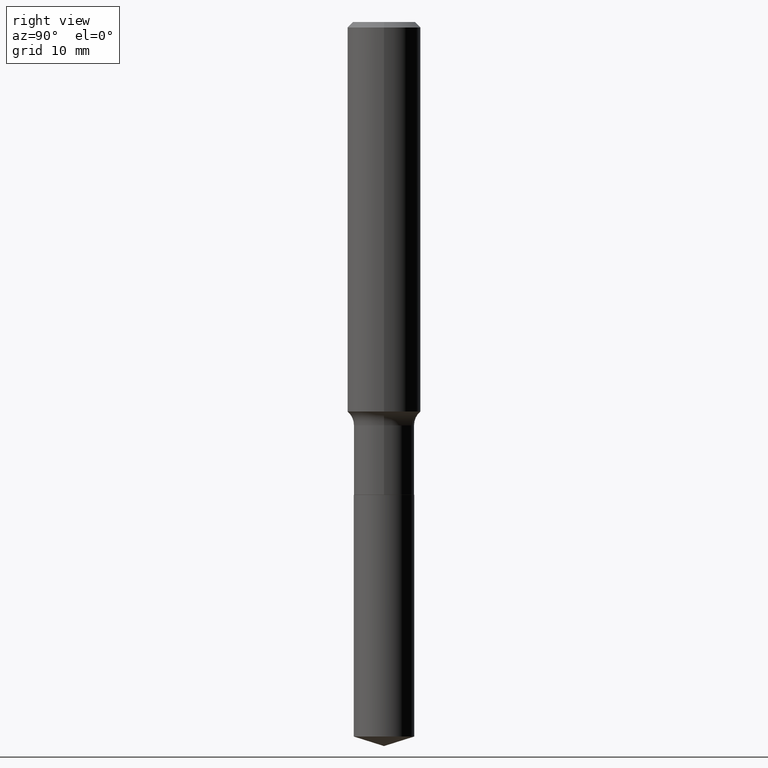
[diagram: clean part render]
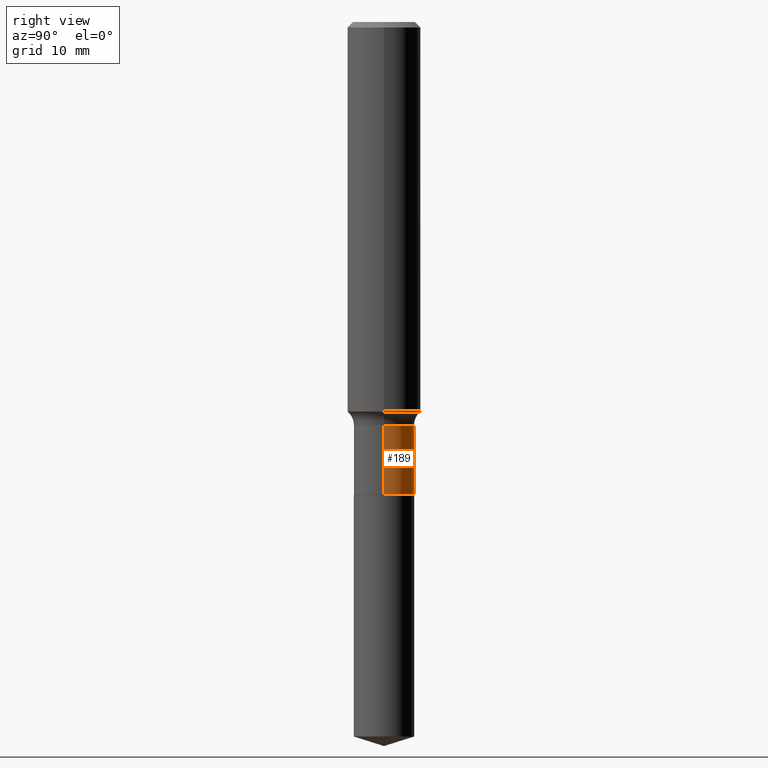
[diagram: same view with one face highlighted and labeled with its STEP entity id]
A machine part, right view. The second image highlights one B-rep face of the part: STEP entity #189.
In plain terms, the highlighted cylindrical surface (edge-blend (fillet) strip) has radius 3.2995 mm, axis along (-0, 0, 1).
Its self-contained STEP definition (entity closure, byte-faithful):
#20 = CARTESIAN_POINT ( 'NONE',  ( 0.1298999999999999877, -7.997936302887991205E-15, -2.030900000000000372 ) ) ;
#25 = VERTEX_POINT ( 'NONE', #377 ) ;
#39 = EDGE_CURVE ( 'NONE', #415, #410, #362, .T. ) ;
#103 = LINE ( 'NONE', #262, #252 ) ;
#126 = ORIENTED_EDGE ( 'NONE', *, *, #320, .T. ) ;
#163 = CARTESIAN_POINT ( 'NONE',  ( -0.1298999999999999599, -5.647099995615719937E-15, -1.732600000000000362 ) ) ;
#166 = CARTESIAN_POINT ( 'NONE',  ( 4.966502598481394648E-29, -7.090849451056544819E-15, -2.030900000000000372 ) ) ;
#182 = DIRECTION ( 'NONE',  ( -2.445468806185136597E-29, 3.491481338843145583E-15, 1.000000000000000000 ) ) ;
#189 = ADVANCED_FACE ( 'NONE', ( #290 ), #300, .T. ) ;
#190 = VECTOR ( 'NONE', #233, 39.37007874015748143 ) ;
#192 = CARTESIAN_POINT ( 'NONE',  ( 4.237019253596368185E-29, -6.049340567679635558E-15, -1.732600000000000362 ) ) ;
#204 = DIRECTION ( 'NONE',  ( 1.000000000000000000, -6.982962677686268288E-15, 0.000000000000000000 ) ) ;
#210 = EDGE_CURVE ( 'NONE', #480, #415, #270, .T. ) ;
#219 = ORIENTED_EDGE ( 'NONE', *, *, #210, .F. ) ;
#228 = EDGE_CURVE ( 'NONE', #25, #410, #103, .T. ) ;
#231 = EDGE_LOOP ( 'NONE', ( #126, #258, #336, #219 ) ) ;
#233 = DIRECTION ( 'NONE',  ( -2.445468806185136877E-29, 3.491481338843145188E-15, 1.000000000000000000 ) ) ;
#252 = VECTOR ( 'NONE', #411, 39.37007874015748143 ) ;
#258 = ORIENTED_EDGE ( 'NONE', *, *, #228, .T. ) ;
#262 = CARTESIAN_POINT ( 'NONE',  ( -0.1298999999999999877, 9.229950137523700540E-16, -6.389696682241121810E-30 ) ) ;
#270 = LINE ( 'NONE', #304, #190 ) ;
#290 = FACE_OUTER_BOUND ( 'NONE', #231, .T. ) ;
#298 = DIRECTION ( 'NONE',  ( 1.000000000000000000, -6.982962677686269866E-15, 0.000000000000000000 ) ) ;
#300 = CYLINDRICAL_SURFACE ( 'NONE', #440, 0.1298999999999999877 ) ;
#304 = CARTESIAN_POINT ( 'NONE',  ( 0.1298999999999999877, -9.070868518314457948E-16, 6.334153631758919429E-30 ) ) ;
#320 = EDGE_CURVE ( 'NONE', #480, #25, #337, .T. ) ;
#334 = DIRECTION ( 'NONE',  ( 1.000000000000000000, -6.982962677686265133E-15, 4.876176775795935232E-29 ) ) ;
#336 = ORIENTED_EDGE ( 'NONE', *, *, #39, .F. ) ;
#337 = CIRCLE ( 'NONE', #481, 0.1298999999999999877 ) ;
#362 = CIRCLE ( 'NONE', #420, 0.1298999999999999599 ) ;
#377 = CARTESIAN_POINT ( 'NONE',  ( -0.1299000000000000155, -5.647099995615719937E-15, -2.030900000000000372 ) ) ;
#381 = CARTESIAN_POINT ( 'NONE',  ( 0.1298999999999999599, -6.956427419511081156E-15, -1.732600000000000362 ) ) ;
#387 = DIRECTION ( 'NONE',  ( -2.445468806185136597E-29, 3.491481338843145583E-15, 1.000000000000000000 ) ) ;
#410 = VERTEX_POINT ( 'NONE', #163 ) ;
#411 = DIRECTION ( 'NONE',  ( -2.445468806185136877E-29, 3.491481338843145188E-15, 1.000000000000000000 ) ) ;
#415 = VERTEX_POINT ( 'NONE', #381 ) ;
#420 = AXIS2_PLACEMENT_3D ( 'NONE', #192, #489, #298 ) ;
#431 = CARTESIAN_POINT ( 'NONE',  ( 0.000000000000000000, 0.000000000000000000, 0.000000000000000000 ) ) ;
#440 = AXIS2_PLACEMENT_3D ( 'NONE', #431, #182, #334 ) ;
#480 = VERTEX_POINT ( 'NONE', #20 ) ;
#481 = AXIS2_PLACEMENT_3D ( 'NONE', #166, #387, #204 ) ;
#489 = DIRECTION ( 'NONE',  ( -2.445468806185136597E-29, 3.491481338843145583E-15, 1.000000000000000000 ) ) ;